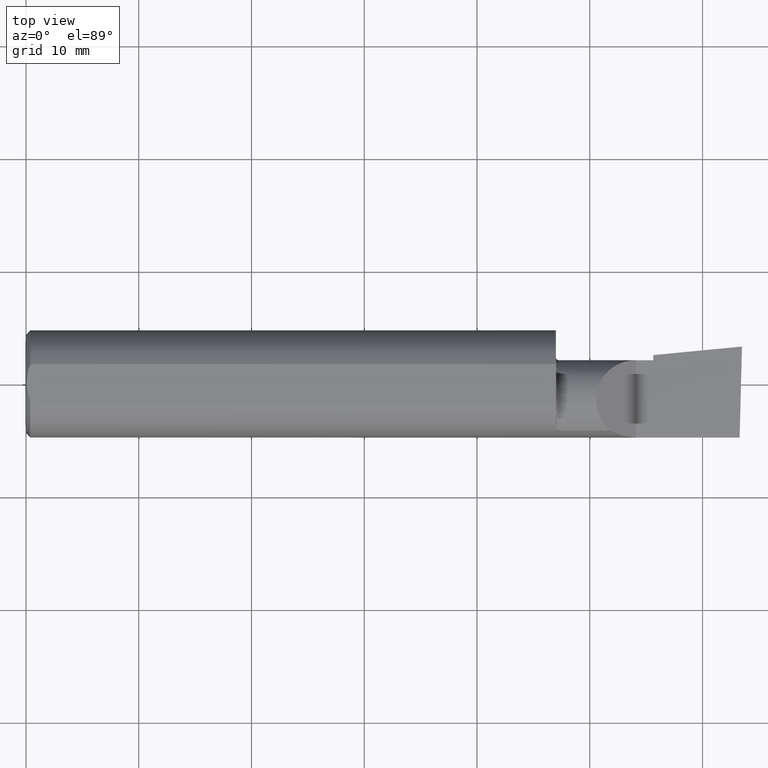
[diagram: clean part render]
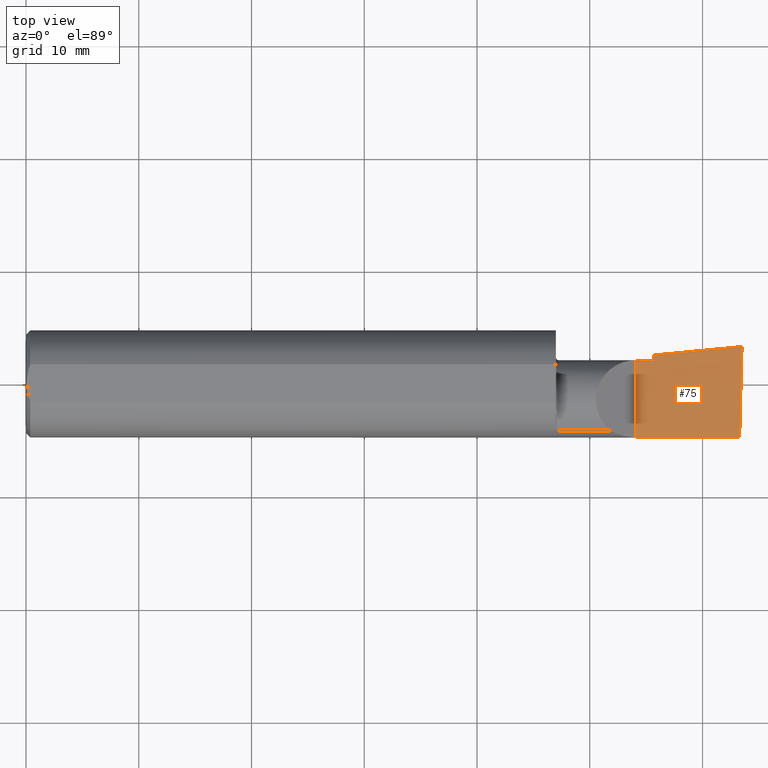
[diagram: same view with one face highlighted and labeled with its STEP entity id]
A machine part, top view. The second image highlights one B-rep face of the part: STEP entity #75.
In plain terms, the highlighted planar face has unit normal (-0, 0, -1).
Its self-contained STEP definition (entity closure, byte-faithful):
#24 = CARTESIAN_POINT ( 'NONE',  ( 2.129999999999999893, 0.08264999999999990410, 1.065442715258197396E-16 ) ) ;
#32 = CARTESIAN_POINT ( 'NONE',  ( 2.129999999999999893, -0.1873499999999999888, 1.065442715258197396E-16 ) ) ;
#33 = VECTOR ( 'NONE', #122, 39.37007874015748143 ) ;
#37 = EDGE_LOOP ( 'NONE', ( #204, #493, #44, #539, #593, #305 ) ) ;
#44 = ORIENTED_EDGE ( 'NONE', *, *, #391, .F. ) ;
#45 = EDGE_CURVE ( 'NONE', #484, #512, #505, .T. ) ;
#50 = VECTOR ( 'NONE', #83, 39.37007874015748143 ) ;
#62 = VERTEX_POINT ( 'NONE', #284 ) ;
#75 = ADVANCED_FACE ( 'NONE', ( #555 ), #114, .F. ) ;
#80 = AXIS2_PLACEMENT_3D ( 'NONE', #514, #573, #289 ) ;
#83 = DIRECTION ( 'NONE',  ( -6.829619984160658816E-18, 1.000000000000000000, 7.059994452165177242E-34 ) ) ;
#97 = VECTOR ( 'NONE', #469, 39.37007874015748854 ) ;
#110 = VERTEX_POINT ( 'NONE', #584 ) ;
#114 = PLANE ( 'NONE',  #80 ) ;
#122 = DIRECTION ( 'NONE',  ( -0.0000000000000000000, 1.000000000000000000, -0.0000000000000000000 ) ) ;
#142 = DIRECTION ( 'NONE',  ( 0.9953961983671787417, 0.09584575252022456415, -1.028972571603813720E-16 ) ) ;
#165 = VECTOR ( 'NONE', #173, 39.37007874015748143 ) ;
#171 = VECTOR ( 'NONE', #533, 39.37007874015748143 ) ;
#173 = DIRECTION ( 'NONE',  ( -1.000000000000000000, -0.0000000000000000000, -0.0000000000000000000 ) ) ;
#204 = ORIENTED_EDGE ( 'NONE', *, *, #45, .F. ) ;
#224 = CARTESIAN_POINT ( 'NONE',  ( -9.564882787816664242E-19, 0.08264999999999998737, 3.267291166268304703E-16 ) ) ;
#232 = EDGE_CURVE ( 'NONE', #512, #519, #255, .T. ) ;
#255 = LINE ( 'NONE', #503, #33 ) ;
#272 = CARTESIAN_POINT ( 'NONE',  ( 3.377502344341257155E-32, -0.1873499999999999610, 3.267291166268304703E-16 ) ) ;
#284 = CARTESIAN_POINT ( 'NONE',  ( 2.189999999999999947, 0.08265000000000004288, 3.267291166268305196E-16 ) ) ;
#289 = DIRECTION ( 'NONE',  ( -1.000000000000000000, 0.0000000000000000000, 1.033731667140896077E-16 ) ) ;
#290 = CARTESIAN_POINT ( 'NONE',  ( 2.490039159128059953, -0.2497391662021650194, 6.932588350567417155E-17 ) ) ;
#296 = CARTESIAN_POINT ( 'NONE',  ( 2.491672876940991710, -0.1873499999999999888, 6.915950918908297591E-17 ) ) ;
#305 = ORIENTED_EDGE ( 'NONE', *, *, #232, .F. ) ;
#306 = LINE ( 'NONE', #581, #553 ) ;
#331 = EDGE_CURVE ( 'NONE', #519, #62, #376, .T. ) ;
#344 = LINE ( 'NONE', #290, #97 ) ;
#376 = LINE ( 'NONE', #224, #171 ) ;
#391 = EDGE_CURVE ( 'NONE', #411, #110, #306, .T. ) ;
#397 = EDGE_CURVE ( 'NONE', #484, #110, #344, .T. ) ;
#411 = VERTEX_POINT ( 'NONE', #415 ) ;
#415 = CARTESIAN_POINT ( 'NONE',  ( 2.189999999999999947, 0.1008003950587675057, 3.286754617377316716E-16 ) ) ;
#469 = DIRECTION ( 'NONE',  ( 0.02617694830779364323, 0.9996573249755593693, -2.665804247635780349E-18 ) ) ;
#484 = VERTEX_POINT ( 'NONE', #296 ) ;
#488 = EDGE_CURVE ( 'NONE', #62, #411, #577, .T. ) ;
#493 = ORIENTED_EDGE ( 'NONE', *, *, #397, .T. ) ;
#503 = CARTESIAN_POINT ( 'NONE',  ( 2.129999999999999893, -0.2500000000000000555, 1.065442715258197396E-16 ) ) ;
#505 = LINE ( 'NONE', #272, #165 ) ;
#512 = VERTEX_POINT ( 'NONE', #32 ) ;
#514 = CARTESIAN_POINT ( 'NONE',  ( 2.500000000000000000, -0.2500000000000000555, 6.829619984160658046E-17 ) ) ;
#519 = VERTEX_POINT ( 'NONE', #24 ) ;
#533 = DIRECTION ( 'NONE',  ( 1.000000000000000000, 6.829619984160658046E-18, 0.0000000000000000000 ) ) ;
#539 = ORIENTED_EDGE ( 'NONE', *, *, #488, .F. ) ;
#553 = VECTOR ( 'NONE', #142, 39.37007874015748143 ) ;
#555 = FACE_OUTER_BOUND ( 'NONE', #37, .T. ) ;
#573 = DIRECTION ( 'NONE',  ( -1.033731667140896077E-16, 0.0000000000000000000, -1.000000000000000000 ) ) ;
#576 = CARTESIAN_POINT ( 'NONE',  ( 2.189999999999999947, -0.2500000000000000555, 1.003418815229743595E-16 ) ) ;
#577 = LINE ( 'NONE', #576, #50 ) ;
#581 = CARTESIAN_POINT ( 'NONE',  ( 0.5470260790800310913, -0.05740000000000000657, 2.701812985571357332E-16 ) ) ;
#584 = CARTESIAN_POINT ( 'NONE',  ( 2.499999999999978684, 0.1306500000000238026, 8.386613271330909852E-14 ) ) ;
#593 = ORIENTED_EDGE ( 'NONE', *, *, #331, .F. ) ;